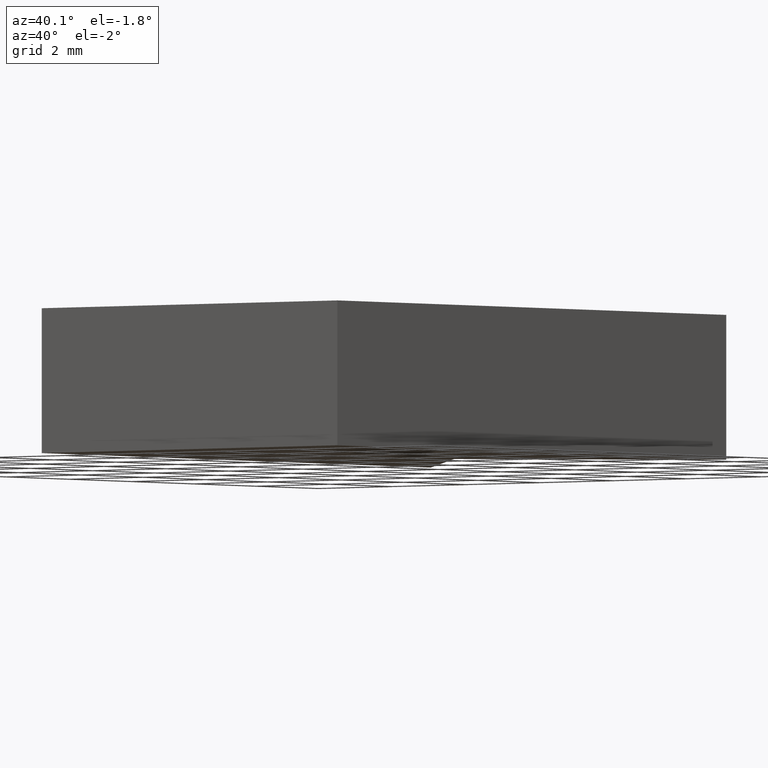
[diagram: clean part render]
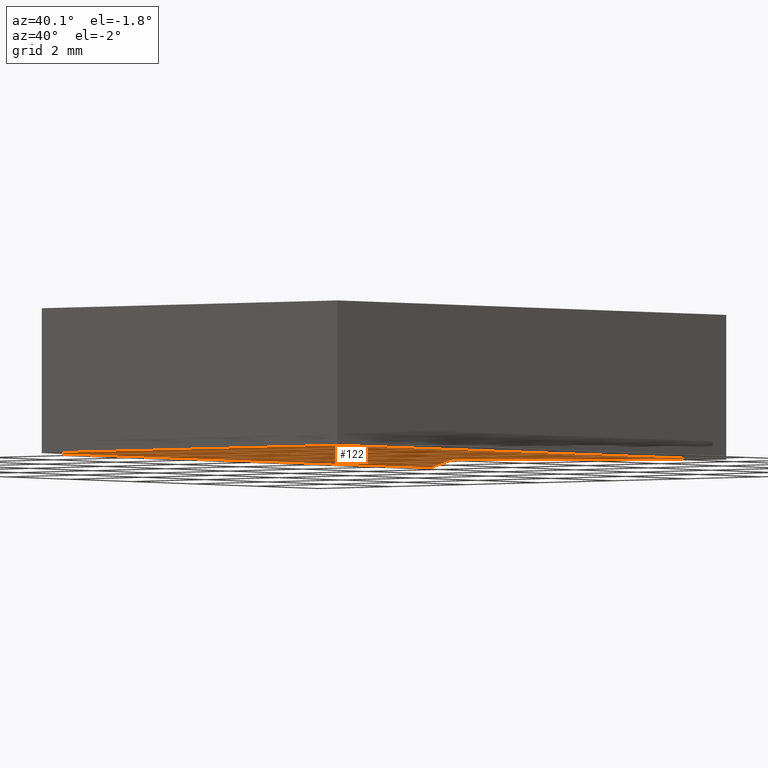
[diagram: same view with one face highlighted and labeled with its STEP entity id]
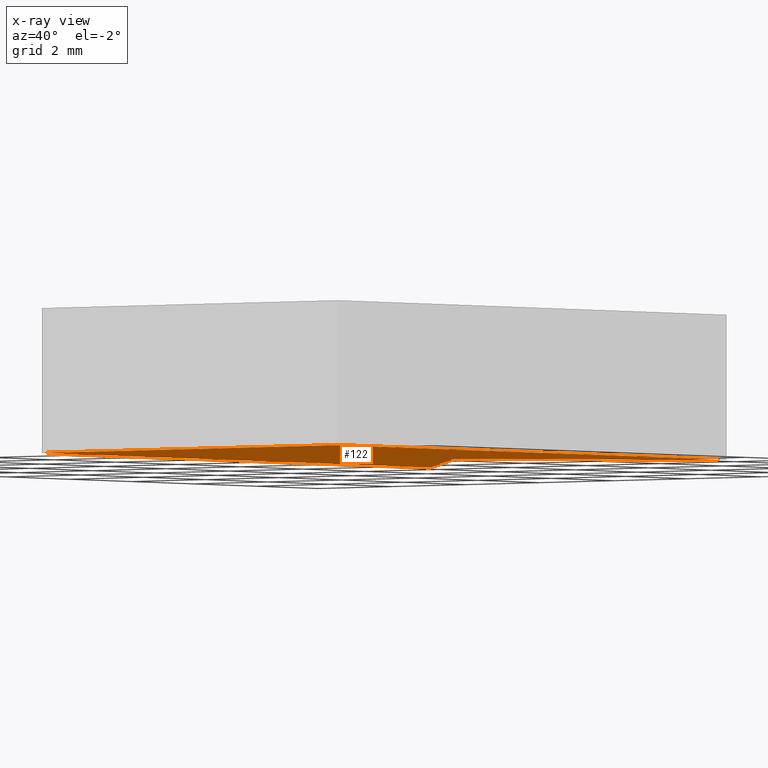
[diagram: x-ray of the same camera — body ghosted, the highlighted face saturated]
A machine part, auxiliary view. The second image highlights one B-rep face of the part: STEP entity #122.
The next image is the same camera in x-ray: the body ghosted, the highlighted face saturated — about 0% of this face is hidden behind the body in this view.
In plain terms, the highlighted planar face has unit normal (0, 0, 1).
Its self-contained STEP definition (entity closure, byte-faithful):
#16=FACE_OUTER_BOUND('',#23,.T.);
#23=EDGE_LOOP('',(#85,#86,#87,#88,#89));
#30=LINE('',#191,#45);
#31=LINE('',#193,#46);
#32=LINE('',#195,#47);
#33=LINE('',#197,#48);
#34=LINE('',#198,#49);
#45=VECTOR('',#160,10.);
#46=VECTOR('',#161,10.);
#47=VECTOR('',#162,10.);
#48=VECTOR('',#163,10.);
#49=VECTOR('',#164,10.);
#60=VERTEX_POINT('',#189);
#61=VERTEX_POINT('',#190);
#62=VERTEX_POINT('',#192);
#63=VERTEX_POINT('',#194);
#64=VERTEX_POINT('',#196);
#70=EDGE_CURVE('',#60,#61,#30,.T.);
#71=EDGE_CURVE('',#62,#60,#31,.T.);
#72=EDGE_CURVE('',#63,#62,#32,.T.);
#73=EDGE_CURVE('',#64,#63,#33,.T.);
#74=EDGE_CURVE('',#61,#64,#34,.T.);
#85=ORIENTED_EDGE('',*,*,#70,.F.);
#86=ORIENTED_EDGE('',*,*,#71,.F.);
#87=ORIENTED_EDGE('',*,*,#72,.F.);
#88=ORIENTED_EDGE('',*,*,#73,.F.);
#89=ORIENTED_EDGE('',*,*,#74,.F.);
#115=PLANE('',#149);
#122=ADVANCED_FACE('',(#16),#115,.F.);
#149=AXIS2_PLACEMENT_3D('',#188,#158,#159);
#158=DIRECTION('center_axis',(0.,0.,1.));
#159=DIRECTION('ref_axis',(1.,0.,0.));
#160=DIRECTION('',(-1.77635683940025E-16,1.,0.));
#161=DIRECTION('',(1.,0.,0.));
#162=DIRECTION('',(-1.77635683940025E-16,-1.,0.));
#163=DIRECTION('',(-0.707106781186548,0.707106781186547,0.));
#164=DIRECTION('',(-0.707106781186548,-0.707106781186547,0.));
#188=CARTESIAN_POINT('Origin',(0.,6.20674614144833,-1.5));
#189=CARTESIAN_POINT('',(4.,-4.8888881406096E-16,-1.5));
#190=CARTESIAN_POINT('',(4.,12.5,-1.5));
#191=CARTESIAN_POINT('',(4.,12.5,-1.5));
#192=CARTESIAN_POINT('',(-4.,-4.8888881406096E-16,-1.5));
#193=CARTESIAN_POINT('',(4.,-4.8888881406096E-16,-1.5));
#194=CARTESIAN_POINT('',(-4.,12.5,-1.5));
#195=CARTESIAN_POINT('',(-4.,-4.8888881406096E-16,-1.5));
#196=CARTESIAN_POINT('',(0.,8.5,-1.5));
#197=CARTESIAN_POINT('',(-4.,12.5,-1.5));
#198=CARTESIAN_POINT('',(0.,8.5,-1.5));